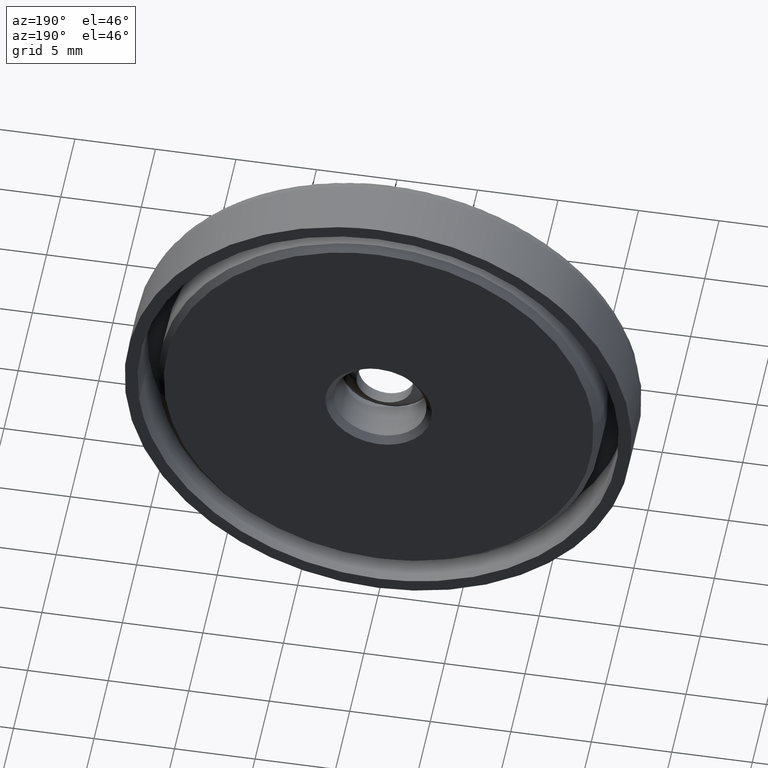
[diagram: clean part render]
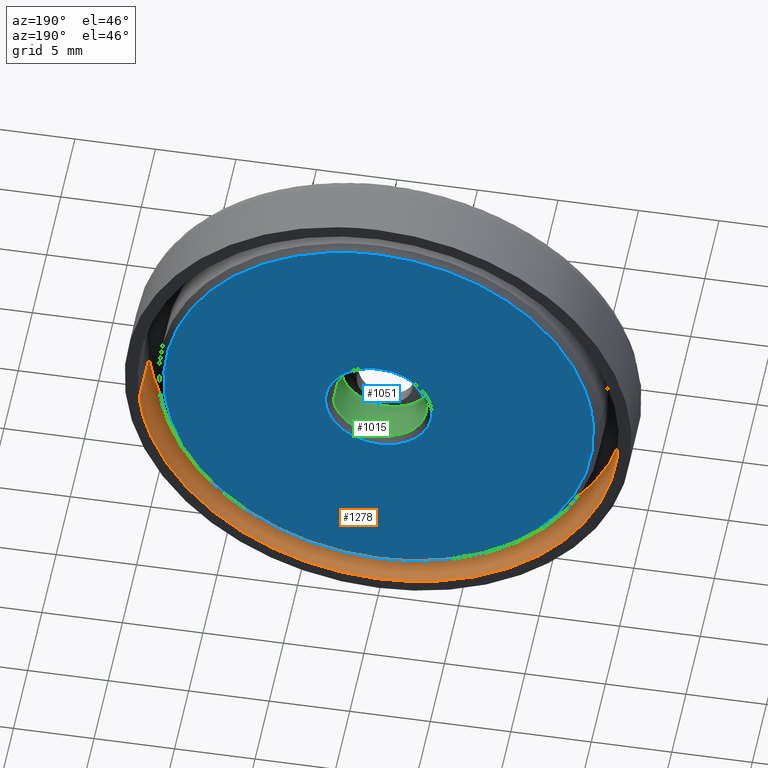
[diagram: same view with three faces highlighted in distinct colors, each labeled with its STEP entity id]
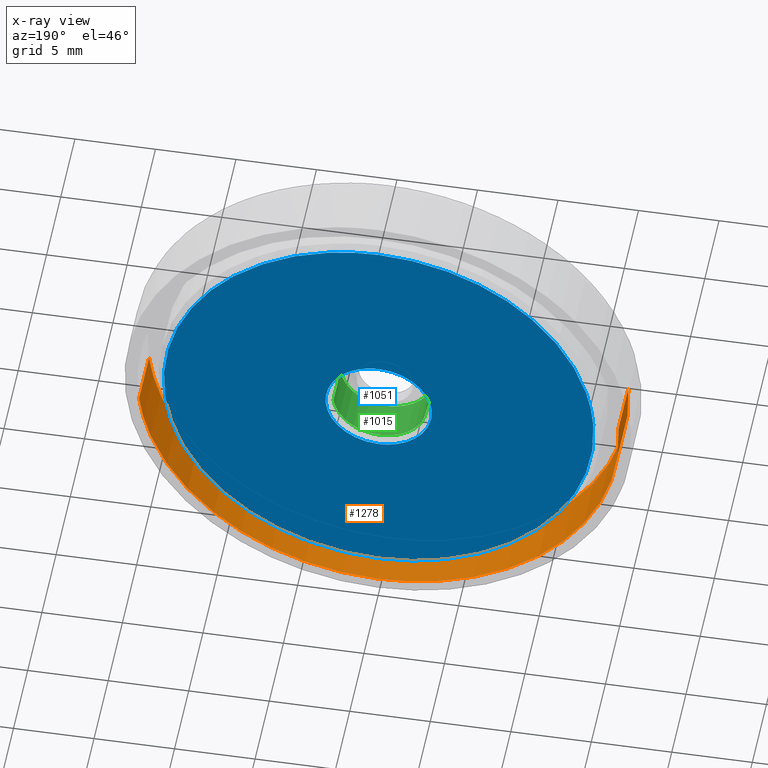
[diagram: x-ray of the same camera — body ghosted, the three highlighted faces saturated]
A machine part, auxiliary view with three faces highlighted in distinct colors.
The next image is the same camera in x-ray (body ghosted, the three faces saturated) — at least one of them is partly hidden behind the body in this view.
Their STEP definitions:

[orange] entity #1278 — the highlighted face is a freeform B-spline surface patch.
#1115=CARTESIAN_POINT('',(14.845496209375080,-3.500002999994742,-1.764605337573195));
#1116=VERTEX_POINT('',#1115);
#1134=CARTESIAN_POINT('',(-14.922118230775171,-3.500003000000000,0.912675849782592));
#1135=VERTEX_POINT('',#1134);
#1149=CARTESIAN_POINT('',(-14.922116234505570,1.249001E-016,0.912675727685514));
#1150=VERTEX_POINT('',#1149);
#1151=CARTESIAN_POINT('',(-14.922116234505570,1.249001E-016,0.912675727685514));
#1152=CARTESIAN_POINT('',(-14.922118230775171,-3.500003000000000,0.912675849782592));
#1153=QUASI_UNIFORM_CURVE('',1,(#1151,#1152),.UNSPECIFIED.,.F.,.U.);
#1154=EDGE_CURVE('',#1150,#1135,#1153,.T.);
#1171=CARTESIAN_POINT('',(14.845494213864299,-7.808428E-017,-1.764605181358230));
#1172=VERTEX_POINT('',#1171);
#1188=CARTESIAN_POINT('',(14.845494213864299,-7.808428E-017,-1.764605181358230));
#1189=CARTESIAN_POINT('',(14.845496209375080,-3.500002999994742,-1.764605337573195));
#1190=QUASI_UNIFORM_CURVE('',1,(#1188,#1189),.UNSPECIFIED.,.F.,.U.);
#1191=EDGE_CURVE('',#1172,#1116,#1190,.T.);
#1196=CARTESIAN_POINT('',(-14.922117232676509,0.087500075000000,0.912675788143191));
#1197=CARTESIAN_POINT('',(-15.834793020819706,0.087500075000000,-14.009441444533316));
#1198=CARTESIAN_POINT('',(-0.912675788143191,0.087500075000000,-14.922117232676509));
#1199=CARTESIAN_POINT('',(13.179076951137521,0.087500075000000,-15.784005752723676));
#1200=CARTESIAN_POINT('',(14.845494405155867,0.087500075000000,-1.764612044187009));
#1201=CARTESIAN_POINT('',(-14.922117232676509,-3.589690576875001,0.912675788143191));
#1202=CARTESIAN_POINT('',(-15.834793020819706,-3.589690576875001,-14.009441444533316));
#1203=CARTESIAN_POINT('',(-0.912675788143191,-3.589690576875001,-14.922117232676509));
#1204=CARTESIAN_POINT('',(13.179076951137521,-3.589690576875000,-15.784005752723676));
#1205=CARTESIAN_POINT('',(14.845494405155867,-3.589690576875001,-1.764612044187009));
#1213=(BOUNDED_SURFACE()B_SPLINE_SURFACE(2,1,((#1196,#1201),(#1197,#1202),(#1198,#1203),(#1199,#1204),(#1200,#1205)),.UNSPECIFIED.,.F.,.F.,.U.)B_SPLINE_SURFACE_WITH_KNOTS((3,2,3),(2,2),(0.0,24.769974343619580,48.549149713494373),(0.0,3.677190651875001),.UNSPECIFIED.)GEOMETRIC_REPRESENTATION_ITEM()RATIONAL_B_SPLINE_SURFACE(((1.0,1.0),(0.707106781186548,0.707106781186548),(1.0,1.0),(0.718822509939086,0.718822509939086),(0.977505800795127,0.977505800795127)))REPRESENTATION_ITEM('')SURFACE());
#1214=CARTESIAN_POINT('',(0.0,-3.500003000000000,-14.950004000000000));
#1215=VERTEX_POINT('',#1214);
#1216=CARTESIAN_POINT('',(0.0,-3.500003000000000,-14.950004000000000));
#1217=CARTESIAN_POINT('',(13.278218366287529,-3.500002999997372,-14.950003940983017));
#1218=CARTESIAN_POINT('',(14.845496209375085,-3.500002999994743,-1.764605337573195));
#1226=(BOUNDED_CURVE()B_SPLINE_CURVE(2,(#1216,#1217,#1218),.UNSPECIFIED.,.F.,.U.)B_SPLINE_CURVE_WITH_KNOTS((3,3),(0.0,0.229562551208419),.UNSPECIFIED.)CURVE()GEOMETRIC_REPRESENTATION_ITEM()RATIONAL_B_SPLINE_CURVE((1.0,0.731050741830153,0.956026906468960))REPRESENTATION_ITEM(''));
#1227=EDGE_CURVE('',#1215,#1116,#1226,.T.);
#1228=ORIENTED_EDGE('',*,*,#1227,.T.);
#1229=ORIENTED_EDGE('',*,*,#1191,.F.);
#1230=CARTESIAN_POINT('',(0.0,0.0,-14.949999999999999));
#1231=VERTEX_POINT('',#1230);
#1232=CARTESIAN_POINT('',(0.0,0.0,-14.949999999999999));
#1233=CARTESIAN_POINT('',(13.278215238168238,0.0,-14.950000000000005));
#1234=CARTESIAN_POINT('',(14.845494213864308,-7.808428E-017,-1.764605181358231));
#1242=(BOUNDED_CURVE()B_SPLINE_CURVE(2,(#1232,#1233,#1234),.UNSPECIFIED.,.F.,.U.)B_SPLINE_CURVE_WITH_KNOTS((3,3),(0.0,0.229562550299366),.UNSPECIFIED.)CURVE()GEOMETRIC_REPRESENTATION_ITEM()RATIONAL_B_SPLINE_CURVE((1.0,0.731050742895175,0.956026904687177))REPRESENTATION_ITEM(''));
#1243=EDGE_CURVE('',#1231,#1172,#1242,.T.);
#1244=ORIENTED_EDGE('',*,*,#1243,.F.);
#1245=CARTESIAN_POINT('',(-14.922116234505570,1.249001E-016,0.912675727685514));
#1246=CARTESIAN_POINT('',(-14.950000983791012,1.231052E-016,0.456763871781402));
#1247=CARTESIAN_POINT('',(-14.950000968543129,1.211972E-016,0.000000059238640));
#1248=CARTESIAN_POINT('',(-14.950000469475732,5.874714E-017,-14.949999971285628));
#1249=CARTESIAN_POINT('',(0.0,0.0,-14.949999999999999));
#1257=(BOUNDED_CURVE()B_SPLINE_CURVE(2,(#1245,#1246,#1247,#1248,#1249),.UNSPECIFIED.,.F.,.U.)B_SPLINE_CURVE_WITH_KNOTS((3,2,3),(0.739332962235136,0.750000000000000,1.0),.UNSPECIFIED.)CURVE()GEOMETRIC_REPRESENTATION_ITEM()RATIONAL_B_SPLINE_CURVE((0.976072041658559,0.987502787895377,1.0,0.707106781186548,1.0))REPRESENTATION_ITEM(''));
#1258=EDGE_CURVE('',#1150,#1231,#1257,.T.);
#1259=ORIENTED_EDGE('',*,*,#1258,.F.);
#1260=ORIENTED_EDGE('',*,*,#1154,.T.);
#1261=CARTESIAN_POINT('',(-14.922118230775164,-3.500003000000000,0.912675849782592));
#1262=CARTESIAN_POINT('',(-14.950003016208980,-3.500003000000000,0.456763873649983));
#1263=CARTESIAN_POINT('',(-14.950003031456870,-3.500003000000000,-0.000000059238631));
#1264=CARTESIAN_POINT('',(-14.950003530524272,-3.500003000000000,-14.950004028714361));
#1265=CARTESIAN_POINT('',(0.0,-3.500003000000000,-14.950004000000000));
#1273=(BOUNDED_CURVE()B_SPLINE_CURVE(2,(#1261,#1262,#1263,#1264,#1265),.UNSPECIFIED.,.F.,.U.)B_SPLINE_CURVE_WITH_KNOTS((3,2,3),(0.739332962235136,0.750000000000000,1.0),.UNSPECIFIED.)CURVE()GEOMETRIC_REPRESENTATION_ITEM()RATIONAL_B_SPLINE_CURVE((0.976072041658559,0.987502787895377,1.0,0.707106781186548,1.0))REPRESENTATION_ITEM(''));
#1274=EDGE_CURVE('',#1135,#1215,#1273,.T.);
#1275=ORIENTED_EDGE('',*,*,#1274,.T.);
#1276=EDGE_LOOP('',(#1228,#1229,#1244,#1259,#1260,#1275));
#1277=FACE_OUTER_BOUND('',#1276,.T.);
#1278=ADVANCED_FACE('',(#1277),#1213,.F.);

[blue] entity #1051 — the highlighted face is a freeform B-spline surface patch.
#627=CARTESIAN_POINT('',(13.256677176955099,-0.200003000002446,-1.575757032686965));
#628=VERTEX_POINT('',#627);
#634=CARTESIAN_POINT('',(0.0,-0.200003000000021,13.350000000000000));
#635=VERTEX_POINT('',#634);
#636=CARTESIAN_POINT('',(13.256677176955096,-0.200003000002446,-1.575757032686965));
#637=CARTESIAN_POINT('',(13.350000000000005,-0.200003000000021,-0.790641997372154));
#638=CARTESIAN_POINT('',(13.350000000000000,-0.200003000000021,-5.695187E-016));
#639=CARTESIAN_POINT('',(13.350000000000000,-0.200003000000021,13.350000000000000));
#640=CARTESIAN_POINT('',(0.0,-0.200003000000021,13.350000000000000));
#648=(BOUNDED_CURVE()B_SPLINE_CURVE(2,(#636,#637,#638,#639,#640),.UNSPECIFIED.,.F.,.U.)B_SPLINE_CURVE_WITH_KNOTS((3,2,3),(0.229562473515161,0.250000000000000,0.500000000000000),.UNSPECIFIED.)CURVE()GEOMETRIC_REPRESENTATION_ITEM()RATIONAL_B_SPLINE_CURVE((0.956026754186939,0.976055948333081,1.0,0.707106781186548,1.0))REPRESENTATION_ITEM(''));
#649=EDGE_CURVE('',#628,#635,#648,.T.);
#651=CARTESIAN_POINT('',(-13.325099558935531,-0.200003000006740,0.814998002841396));
#652=VERTEX_POINT('',#651);
#653=CARTESIAN_POINT('',(0.0,-0.200003000000021,13.350000000000000));
#654=CARTESIAN_POINT('',(-12.558425993095412,-0.200003000000021,13.350000000000001));
#655=CARTESIAN_POINT('',(-13.325099558935534,-0.200003000006740,0.814998002841396));
#663=(BOUNDED_CURVE()B_SPLINE_CURVE(2,(#653,#654,#655),.UNSPECIFIED.,.F.,.U.)B_SPLINE_CURVE_WITH_KNOTS((3,3),(0.500000000000000,0.739332962240657),.UNSPECIFIED.)CURVE()GEOMETRIC_REPRESENTATION_ITEM()RATIONAL_B_SPLINE_CURVE((1.0,0.719603993284702,0.976072041670392))REPRESENTATION_ITEM(''));
#664=EDGE_CURVE('',#635,#652,#663,.T.);
#697=CARTESIAN_POINT('',(0.0,-0.200003000000021,-13.350000000000000));
#698=VERTEX_POINT('',#697);
#699=CARTESIAN_POINT('',(-13.325099558935536,-0.200003000006739,0.814998002841396));
#700=CARTESIAN_POINT('',(-13.350000000000007,-0.200003000000021,0.407879390086948));
#701=CARTESIAN_POINT('',(-13.350000000000000,-0.200003000000021,-5.695187E-016));
#702=CARTESIAN_POINT('',(-13.350000000000000,-0.200003000000021,-13.350000000000000));
#703=CARTESIAN_POINT('',(0.0,-0.200003000000021,-13.350000000000000));
#711=(BOUNDED_CURVE()B_SPLINE_CURVE(2,(#699,#700,#701,#702,#703),.UNSPECIFIED.,.F.,.U.)B_SPLINE_CURVE_WITH_KNOTS((3,2,3),(0.739332962240657,0.750000000000000,1.0),.UNSPECIFIED.)CURVE()GEOMETRIC_REPRESENTATION_ITEM()RATIONAL_B_SPLINE_CURVE((0.976072041670391,0.987502787901845,1.0,0.707106781186548,1.0))REPRESENTATION_ITEM(''));
#712=EDGE_CURVE('',#652,#698,#711,.T.);
#714=CARTESIAN_POINT('',(0.0,-0.200003000000021,-13.350000000000000));
#715=CARTESIAN_POINT('',(11.857129921416611,-0.200003000000021,-13.350000000000000));
#716=CARTESIAN_POINT('',(13.256677176955098,-0.200003000002446,-1.575757032686965));
#724=(BOUNDED_CURVE()B_SPLINE_CURVE(2,(#714,#715,#716),.UNSPECIFIED.,.F.,.U.)B_SPLINE_CURVE_WITH_KNOTS((3,3),(0.0,0.229562473515161),.UNSPECIFIED.)CURVE()GEOMETRIC_REPRESENTATION_ITEM()RATIONAL_B_SPLINE_CURVE((1.0,0.731050832853466,0.956026754186939))REPRESENTATION_ITEM(''));
#725=EDGE_CURVE('',#698,#628,#724,.T.);
#772=CARTESIAN_POINT('',(1.774907618415030,-0.200002999997410,2.782032161228461));
#773=VERTEX_POINT('',#772);
#779=CARTESIAN_POINT('',(0.0,-0.200003000000019,-3.300000000000000));
#780=VERTEX_POINT('',#779);
#781=CARTESIAN_POINT('',(0.0,-0.200003000000019,-3.300000000000000));
#782=CARTESIAN_POINT('',(3.300000000000000,-0.200003000000019,-3.300000000000000));
#783=CARTESIAN_POINT('',(3.300000000000000,-0.200003000000019,-5.695187E-016));
#784=CARTESIAN_POINT('',(3.299999999999999,-0.200003000000019,1.809039064785059));
#785=CARTESIAN_POINT('',(1.774907618415030,-0.200002999997410,2.782032161228460));
#793=(BOUNDED_CURVE()B_SPLINE_CURVE(2,(#781,#782,#783,#784,#785),.UNSPECIFIED.,.F.,.U.)B_SPLINE_CURVE_WITH_KNOTS((3,2,3),(0.0,0.250000000000000,0.407950112623052),.UNSPECIFIED.)CURVE()GEOMETRIC_REPRESENTATION_ITEM()RATIONAL_B_SPLINE_CURVE((1.0,0.707106781186548,1.0,0.814949932407548,0.863729296952146))REPRESENTATION_ITEM(''));
#794=EDGE_CURVE('',#780,#773,#793,.T.);
#796=CARTESIAN_POINT('',(-3.289827201320544,-0.200002999996916,0.258915015925903));
#797=VERTEX_POINT('',#796);
#798=CARTESIAN_POINT('',(-3.289827201320544,-0.200002999996916,0.258915015925903));
#799=CARTESIAN_POINT('',(-3.300000000000000,-0.200003000000019,0.129657353149190));
#800=CARTESIAN_POINT('',(-3.300000000000000,-0.200003000000019,-5.695187E-016));
#801=CARTESIAN_POINT('',(-3.300000000000000,-0.200003000000019,-3.300000000000000));
#802=CARTESIAN_POINT('',(0.0,-0.200003000000019,-3.300000000000000));
#810=(BOUNDED_CURVE()B_SPLINE_CURVE(2,(#798,#799,#800,#801,#802),.UNSPECIFIED.,.F.,.U.)B_SPLINE_CURVE_WITH_KNOTS((3,2,3),(0.736331300630290,0.750000000000000,1.0),.UNSPECIFIED.)CURVE()GEOMETRIC_REPRESENTATION_ITEM()RATIONAL_B_SPLINE_CURVE((0.969723356166646,0.983986122578449,1.0,0.707106781186548,1.0))REPRESENTATION_ITEM(''));
#811=EDGE_CURVE('',#797,#780,#810,.T.);
#915=CARTESIAN_POINT('',(0.0,-0.200003000000019,3.299999999999999));
#916=VERTEX_POINT('',#915);
#917=CARTESIAN_POINT('',(0.0,-0.200003000000019,3.299999999999999));
#918=CARTESIAN_POINT('',(-3.050488622427876,-0.200003000000019,3.300000000000000));
#919=CARTESIAN_POINT('',(-3.289827201320544,-0.200002999996916,0.258915015925903));
#927=(BOUNDED_CURVE()B_SPLINE_CURVE(2,(#917,#918,#919),.UNSPECIFIED.,.F.,.U.)B_SPLINE_CURVE_WITH_KNOTS((3,3),(0.500000000000000,0.736331300630290),.UNSPECIFIED.)CURVE()GEOMETRIC_REPRESENTATION_ITEM()RATIONAL_B_SPLINE_CURVE((1.0,0.723120658608098,0.969723356166647))REPRESENTATION_ITEM(''));
#928=EDGE_CURVE('',#916,#797,#927,.T.);
#930=CARTESIAN_POINT('',(1.774907618415030,-0.200002999997410,2.782032161228460));
#931=CARTESIAN_POINT('',(0.963032582804550,-0.200003000000019,3.300000000000000));
#932=CARTESIAN_POINT('',(0.0,-0.200003000000019,3.299999999999999));
#940=(BOUNDED_CURVE()B_SPLINE_CURVE(2,(#930,#931,#932),.UNSPECIFIED.,.F.,.U.)B_SPLINE_CURVE_WITH_KNOTS((3,3),(0.407950112623052,0.500000000000000),.UNSPECIFIED.)CURVE()GEOMETRIC_REPRESENTATION_ITEM()RATIONAL_B_SPLINE_CURVE((0.863729296952146,0.892156848779000,1.0))REPRESENTATION_ITEM(''));
#941=EDGE_CURVE('',#773,#916,#940,.T.);
#1034=CARTESIAN_POINT('',(-14.683340021116379,-0.200003000000020,14.683665449531210));
#1035=CARTESIAN_POINT('',(-14.683340021116379,-0.200003000000020,-14.683665688247810));
#1036=CARTESIAN_POINT('',(14.683422139627581,-0.200003000000020,14.683665449531210));
#1037=CARTESIAN_POINT('',(14.683422139627581,-0.200003000000020,-14.683665688247810));
#1038=B_SPLINE_SURFACE_WITH_KNOTS('',1,1,((#1034,#1036),(#1035,#1037)),.UNSPECIFIED.,.F.,.F.,.U.,(2,2),(2,2),(0.0,29.367331137779018),(0.0,29.366762160743949),.UNSPECIFIED.);
#1039=ORIENTED_EDGE('',*,*,#712,.F.);
#1040=ORIENTED_EDGE('',*,*,#664,.F.);
#1041=ORIENTED_EDGE('',*,*,#649,.F.);
#1042=ORIENTED_EDGE('',*,*,#725,.F.);
#1043=EDGE_LOOP('',(#1039,#1040,#1041,#1042));
#1044=FACE_OUTER_BOUND('',#1043,.T.);
#1045=ORIENTED_EDGE('',*,*,#928,.T.);
#1046=ORIENTED_EDGE('',*,*,#811,.T.);
#1047=ORIENTED_EDGE('',*,*,#794,.T.);
#1048=ORIENTED_EDGE('',*,*,#941,.T.);
#1049=EDGE_LOOP('',(#1045,#1046,#1047,#1048));
#1050=FACE_BOUND('',#1049,.T.);
#1051=ADVANCED_FACE('',(#1044,#1050),#1038,.F.);

[green] entity #1015 — the highlighted face is a freeform B-spline surface patch.
#116=CARTESIAN_POINT('',(-2.894590915421354,-3.100003000000000,0.177040764684766));
#117=VERTEX_POINT('',#116);
#161=CARTESIAN_POINT('',(2.879727626447859,-3.100003000000000,-0.342299280561589));
#162=VERTEX_POINT('',#161);
#178=CARTESIAN_POINT('',(0.0,-3.100003000000000,-2.900000000000000));
#179=VERTEX_POINT('',#178);
#180=CARTESIAN_POINT('',(0.0,-3.100003000000000,-2.900000000000000));
#181=CARTESIAN_POINT('',(2.575706125156305,-3.100003000000000,-2.900000000000001));
#182=CARTESIAN_POINT('',(2.879727626447859,-3.100003000000001,-0.342299280561589));
#190=(BOUNDED_CURVE()B_SPLINE_CURVE(2,(#180,#181,#182),.UNSPECIFIED.,.F.,.U.)B_SPLINE_CURVE_WITH_KNOTS((3,3),(0.0,0.229562473508955),.UNSPECIFIED.)CURVE()GEOMETRIC_REPRESENTATION_ITEM()RATIONAL_B_SPLINE_CURVE((1.0,0.731050832860737,0.956026754174775))REPRESENTATION_ITEM(''));
#191=EDGE_CURVE('',#179,#162,#190,.T.);
#193=CARTESIAN_POINT('',(-2.894590915421355,-3.100003000000000,0.177040764684766));
#194=CARTESIAN_POINT('',(-2.900000000000000,-3.100003000000001,0.088603013633459));
#195=CARTESIAN_POINT('',(-2.900000000000000,-3.100003000000000,-5.695187E-016));
#196=CARTESIAN_POINT('',(-2.900000000000000,-3.100003000000000,-2.900000000000002));
#197=CARTESIAN_POINT('',(0.0,-3.100003000000000,-2.900000000000000));
#205=(BOUNDED_CURVE()B_SPLINE_CURVE(2,(#193,#194,#195,#196,#197),.UNSPECIFIED.,.F.,.U.)B_SPLINE_CURVE_WITH_KNOTS((3,2,3),(0.739332962233937,0.750000000000000,1.0),.UNSPECIFIED.)CURVE()GEOMETRIC_REPRESENTATION_ITEM()RATIONAL_B_SPLINE_CURVE((0.976072041655990,0.987502787893973,1.0,0.707106781186548,1.0))REPRESENTATION_ITEM(''));
#206=EDGE_CURVE('',#117,#179,#205,.T.);
#753=CARTESIAN_POINT('',(2.879727626447859,-0.600003000000019,-0.342299280561589));
#754=VERTEX_POINT('',#753);
#820=CARTESIAN_POINT('',(-2.894590915419294,-0.600003000000019,0.177040764718447));
#821=VERTEX_POINT('',#820);
#835=CARTESIAN_POINT('',(0.0,-0.600003000000019,-2.900000000000000));
#836=VERTEX_POINT('',#835);
#837=CARTESIAN_POINT('',(-2.894590915419293,-0.600003000000019,0.177040764718447));
#838=CARTESIAN_POINT('',(-2.900000000000000,-0.600003000000019,0.088603013633459));
#839=CARTESIAN_POINT('',(-2.900000000000000,-0.600003000000019,-5.695187E-016));
#840=CARTESIAN_POINT('',(-2.900000000000000,-0.600003000000019,-2.900000000000002));
#841=CARTESIAN_POINT('',(0.0,-0.600003000000019,-2.900000000000000));
#849=(BOUNDED_CURVE()B_SPLINE_CURVE(2,(#837,#838,#839,#840,#841),.UNSPECIFIED.,.F.,.U.)B_SPLINE_CURVE_WITH_KNOTS((3,2,3),(0.739332962233937,0.750000000000000,1.0),.UNSPECIFIED.)CURVE()GEOMETRIC_REPRESENTATION_ITEM()RATIONAL_B_SPLINE_CURVE((0.976072041655990,0.987502787893973,1.0,0.707106781186548,1.0))REPRESENTATION_ITEM(''));
#850=EDGE_CURVE('',#821,#836,#849,.T.);
#852=CARTESIAN_POINT('',(0.0,-0.600003000000019,-2.900000000000000));
#853=CARTESIAN_POINT('',(2.575706125156305,-0.600003000000019,-2.900000000000002));
#854=CARTESIAN_POINT('',(2.879727626447859,-0.600003000000019,-0.342299280561589));
#862=(BOUNDED_CURVE()B_SPLINE_CURVE(2,(#852,#853,#854),.UNSPECIFIED.,.F.,.U.)B_SPLINE_CURVE_WITH_KNOTS((3,3),(0.0,0.229562473508955),.UNSPECIFIED.)CURVE()GEOMETRIC_REPRESENTATION_ITEM()RATIONAL_B_SPLINE_CURVE((1.0,0.731050832860737,0.956026754174775))REPRESENTATION_ITEM(''));
#863=EDGE_CURVE('',#836,#754,#862,.T.);
#972=CARTESIAN_POINT('',(-2.894590915419294,-0.600003000000019,0.177040764718447));
#973=CARTESIAN_POINT('',(-2.894590915421354,-3.100003000000000,0.177040764684766));
#974=QUASI_UNIFORM_CURVE('',1,(#972,#973),.UNSPECIFIED.,.F.,.U.);
#975=EDGE_CURVE('',#821,#117,#974,.T.);
#981=CARTESIAN_POINT('',(2.879727626447859,-0.600003000000019,-0.342299280561589));
#982=CARTESIAN_POINT('',(2.879727626447859,-3.100003000000000,-0.342299280561589));
#983=QUASI_UNIFORM_CURVE('',1,(#981,#982),.UNSPECIFIED.,.F.,.U.);
#984=EDGE_CURVE('',#754,#162,#983,.T.);
#989=CARTESIAN_POINT('',(-2.894590915423414,-0.537503000000019,0.177040764651085));
#990=CARTESIAN_POINT('',(-3.071631680074499,-0.537503000000019,-2.717550150772329));
#991=CARTESIAN_POINT('',(-0.177040764651085,-0.537503000000019,-2.894590915423414));
#992=CARTESIAN_POINT('',(2.556476123434552,-0.537503000000019,-3.061779970524329));
#993=CARTESIAN_POINT('',(2.879727626454632,-0.537503000000019,-0.342299280504600));
#994=CARTESIAN_POINT('',(-2.894590915423414,-3.164065500000000,0.177040764651085));
#995=CARTESIAN_POINT('',(-3.071631680074499,-3.164065500000000,-2.717550150772329));
#996=CARTESIAN_POINT('',(-0.177040764651085,-3.164065500000000,-2.894590915423414));
#997=CARTESIAN_POINT('',(2.556476123434552,-3.164065500000000,-3.061779970524329));
#998=CARTESIAN_POINT('',(2.879727626454632,-3.164065500000000,-0.342299280504600));
#1006=(BOUNDED_SURFACE()B_SPLINE_SURFACE(2,1,((#989,#994),(#990,#995),(#991,#996),(#992,#997),(#993,#998)),.UNSPECIFIED.,.F.,.F.,.U.)B_SPLINE_SURFACE_WITH_KNOTS((3,2,3),(2,2),(0.0,4.804877323527903,9.417559554114687),(0.0,2.626562499999981),.UNSPECIFIED.)GEOMETRIC_REPRESENTATION_ITEM()RATIONAL_B_SPLINE_SURFACE(((1.0,1.0),(0.707106781186548,0.707106781186548),(1.0,1.0),(0.718822509939086,0.718822509939086),(0.977505800795127,0.977505800795127)))REPRESENTATION_ITEM('')SURFACE());
#1007=ORIENTED_EDGE('',*,*,#191,.T.);
#1008=ORIENTED_EDGE('',*,*,#984,.F.);
#1009=ORIENTED_EDGE('',*,*,#863,.F.);
#1010=ORIENTED_EDGE('',*,*,#850,.F.);
#1011=ORIENTED_EDGE('',*,*,#975,.T.);
#1012=ORIENTED_EDGE('',*,*,#206,.T.);
#1013=EDGE_LOOP('',(#1007,#1008,#1009,#1010,#1011,#1012));
#1014=FACE_OUTER_BOUND('',#1013,.T.);
#1015=ADVANCED_FACE('',(#1014),#1006,.F.);